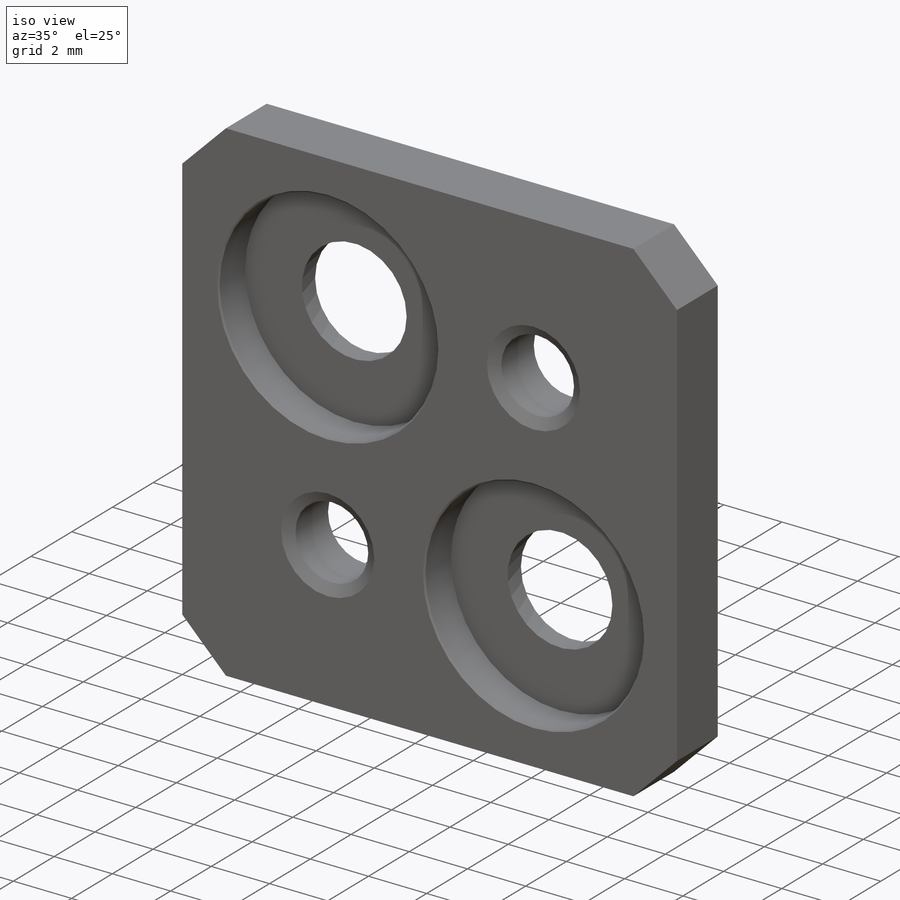
[diagram: iso view]
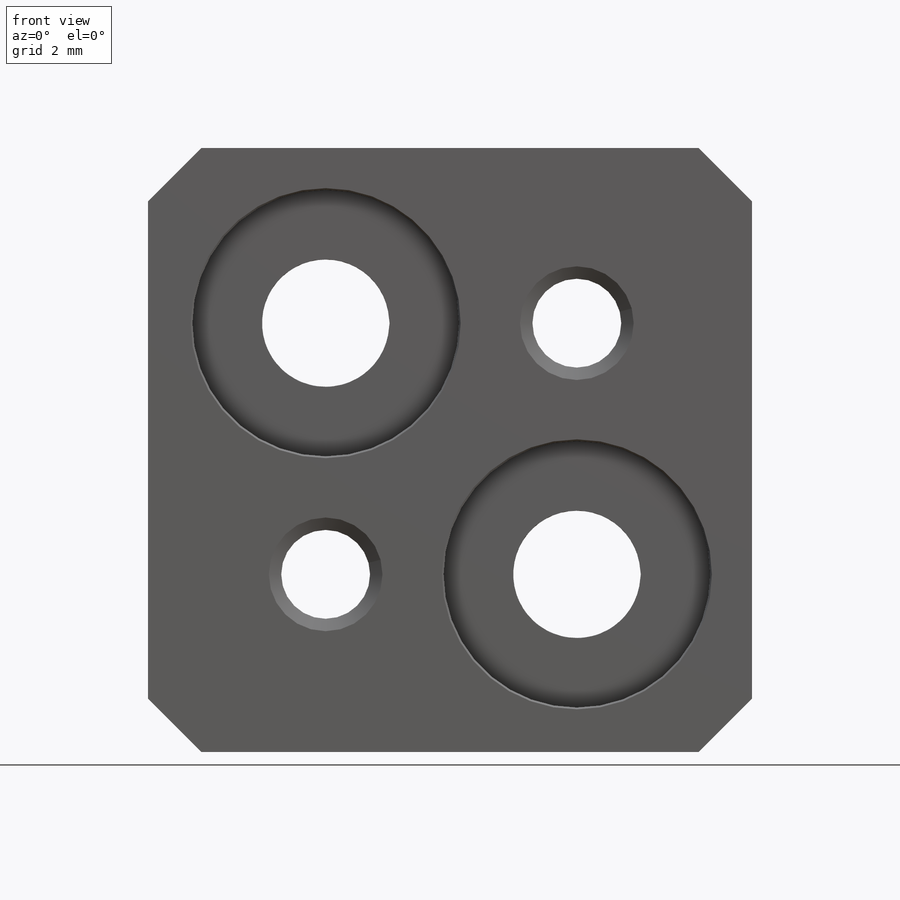
[diagram: front view]
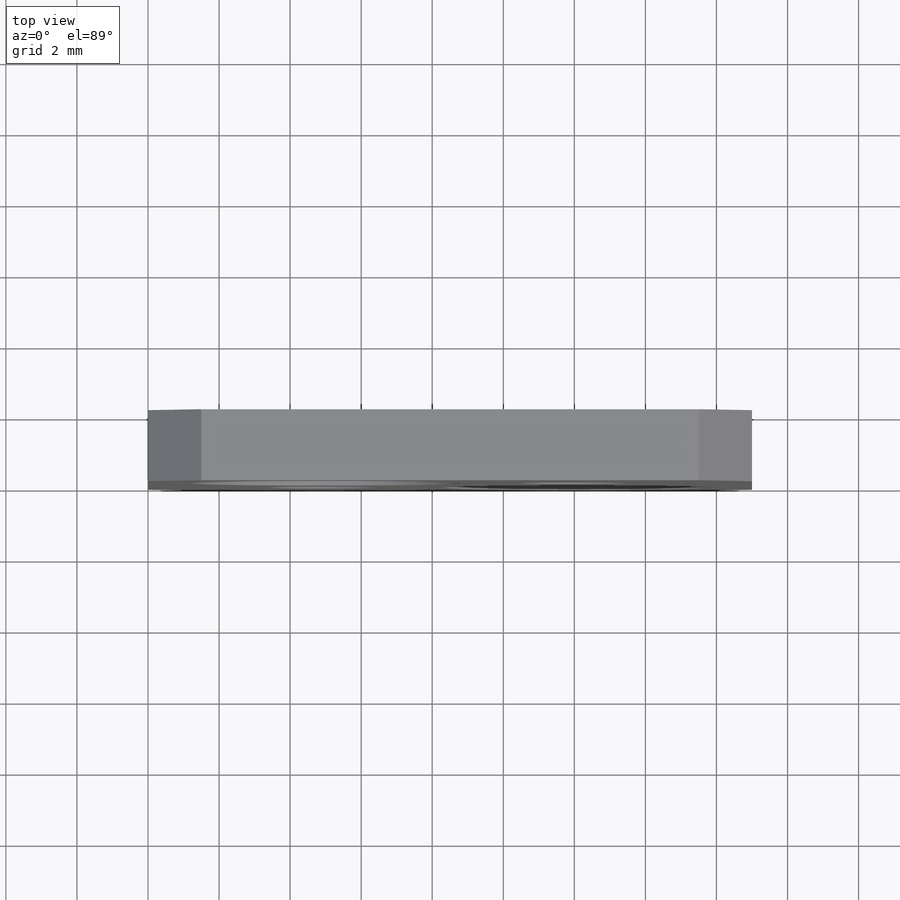
[diagram: top view]
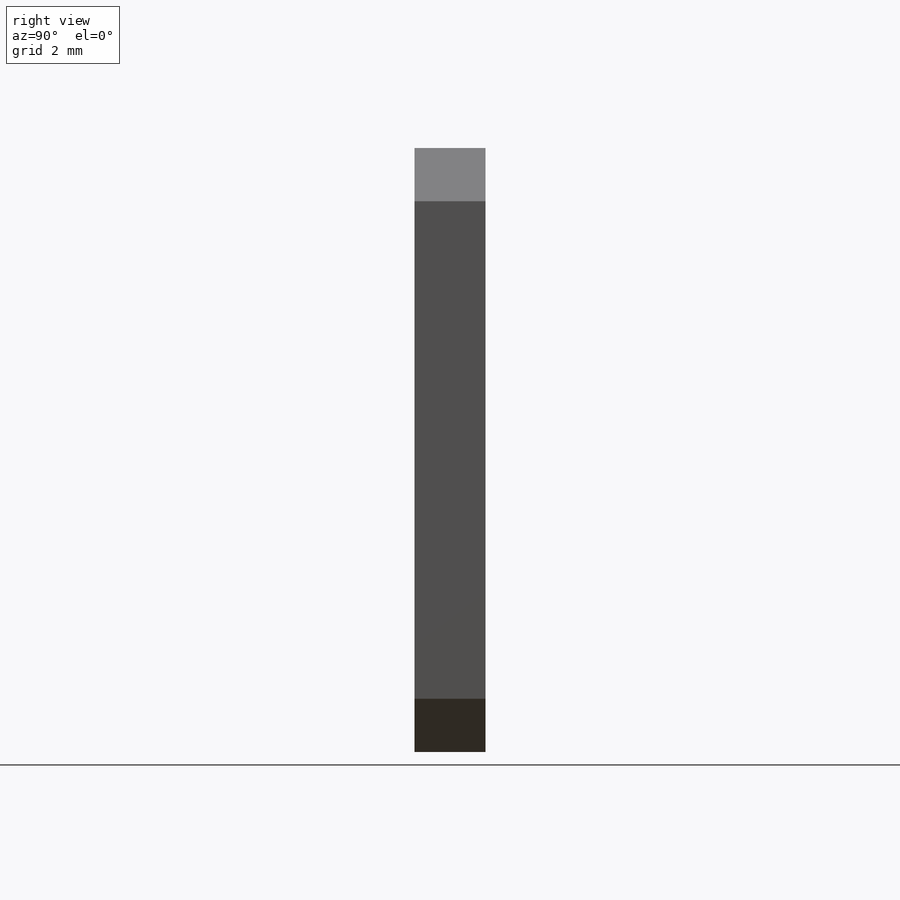
[diagram: right view]
SOLIDWORKS PART (.sldprt)
format: sldprt  version: not decoded by parser v0  size: 276,992 bytes
history: native  units: mm
features: sketch x5, plane x3, hole x2, thread x2, material x1, extrude x1 (+13 scaffold rows collapsed)
feature tree (27):
  scaffold x13  (default folders/planes/origin — collapsed)
  material  "AISI 1045 Сталь, холоднотянутая"
  plane  "Спереди"
  plane  "Сверху"
  plane  "Справа"
  sketch  "Эскиз1"  dims[c1.D3=~1.956474mm c1.D4=~1.956474mm c1.D5=~1.956474mm c1.D6=~1.956474mm c1.D7=2.0mm c1.D1=17.0mm c1.D2=17.0mm c2.D3=7.07mm c2.D4=7.07mm c2.D5=5.0mm c2.D6=5.0mm c2.D10=1.5mm c2.D11=1.5mm c2.D12=1.5mm c2.D13=1.5mm]
  extrude  "Бобышка-Вытянуть1"  Depth=2mm
  hole  "Отверстие обработанное метчиком M3x0.51"  [1 undecoded]
  sketch  "Эскиз3"
  sketch  "Эскиз2"  dims[hole-wizard template sketch: 47 standard entries collapsed; hole parameters kept: c15.Глубина проходного сверла=2.0mm c15.Диаметр передней зенковки=3.2mm c15.D4=~3.666174mm c15.Угол передней зенковки=120.0deg c15.Диаметр задней зенковки=3.2mm c15.D6=~9.919017mm c15.Угол задней зенковки=120.0deg]
  thread  "Отверстие резьбы1"  Diameter=3mm  [1 undecoded]
  thread  "Отверстие резьбы2"  Diameter=3mm  [1 undecoded]
  hole  "Цековка для винта с заклепочной головкой M31"  [1 undecoded]
  sketch  "Эскиз5"
  sketch  "Эскиз4"  dims[hole-wizard template sketch: 41 standard entries collapsed; hole parameters kept: c12.Диаметр сквозного отверстия=3.6mm c12.Глубина сквозного отверстия=2.0mm c12.Диаметр цековки=7.5mm c12.Глубина цековки=1.3mm c12.Диаметр передней зенковки=7.6mm c12.D6=~4.399409mm c12.Угол передней зенковки=90.0deg c12.Диаметр задней зенковки=3.7mm c12.D8=~2.963249mm c12.Угол задней зенковки=90.0deg]
decode coverage: 6 of 10 modeling features carry decoded parameters
note: ~ marks probable driven/reference dimensions
note: 4 parameter values undecoded
note: suppression state not decoded; provenance and decode notes live in map.json
